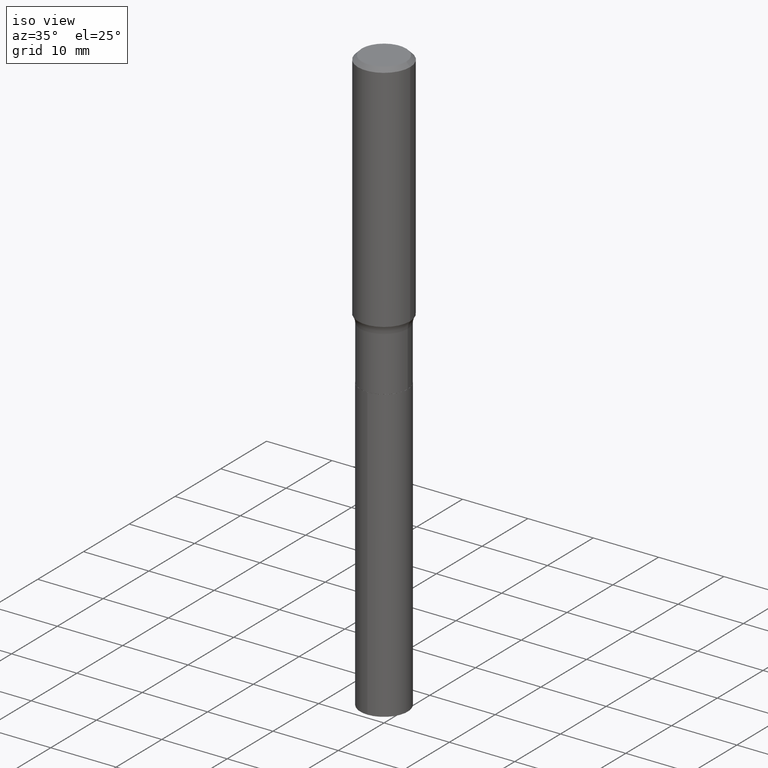
[diagram: clean part render]
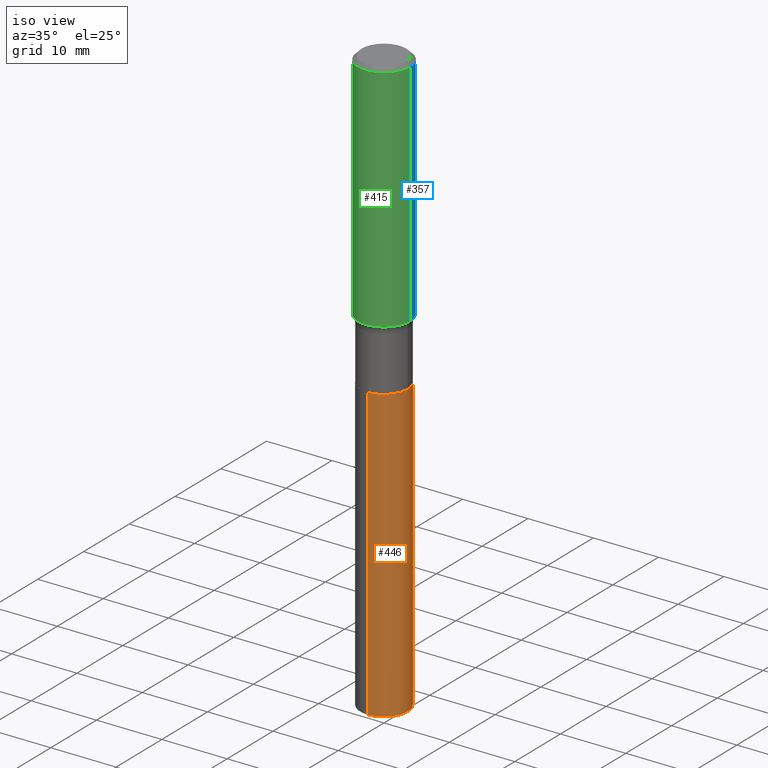
[diagram: same view with three faces highlighted in distinct colors, each labeled with its STEP entity id]
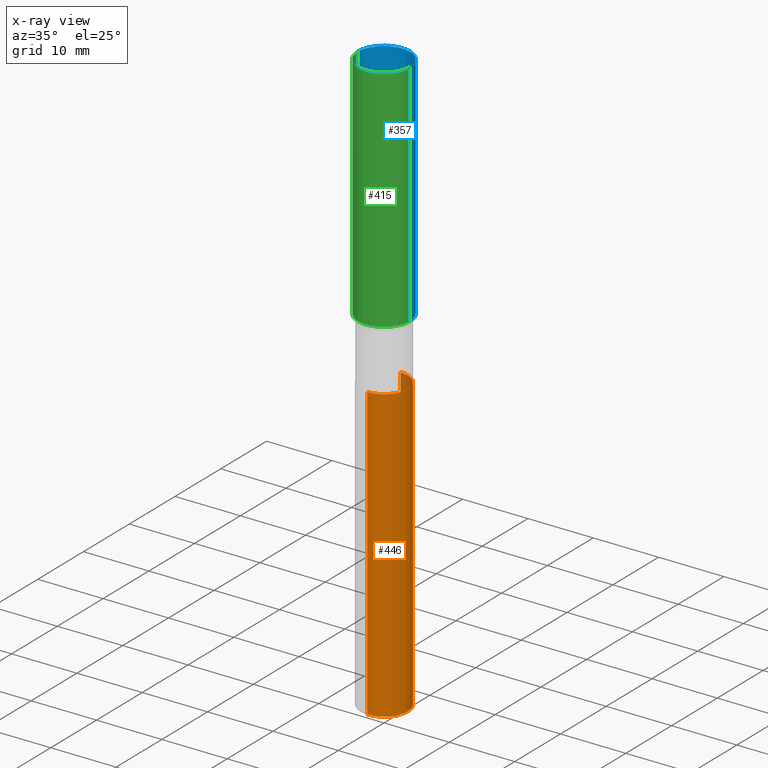
[diagram: x-ray of the same camera — body ghosted, the three highlighted faces saturated]
A machine part, iso view with three faces highlighted in distinct colors.
The next image is the same camera in x-ray (body ghosted, the three faces saturated) — at least one of them is partly hidden behind the body in this view.
Their STEP definitions:

[orange] entity #446 — the highlighted cylindrical surface (edge-blend (fillet) strip) has radius 3.6246 mm, axis along (-0, 0, 1).
#18 = CARTESIAN_POINT ( 'NONE',  ( -9.964687741057865457E-16, -0.1427000000000062108, -1.781499999999999861 ) ) ;
#20 = LINE ( 'NONE', #55, #121 ) ;
#25 = VERTEX_POINT ( 'NONE', #134 ) ;
#30 = AXIS2_PLACEMENT_3D ( 'NONE', #349, #418, #236 ) ;
#36 = CARTESIAN_POINT ( 'NONE',  ( 4.356602678218821524E-29, -6.220074005149064918E-15, -1.781500000000000306 ) ) ;
#55 = CARTESIAN_POINT ( 'NONE',  ( 1.013944483929706307E-15, 0.1426999999999937763, -1.781500000000000972 ) ) ;
#70 = EDGE_CURVE ( 'NONE', #454, #358, #389, .T. ) ;
#82 = EDGE_CURVE ( 'NONE', #25, #310, #87, .T. ) ;
#87 = CIRCLE ( 'NONE', #360, 0.1426999999999999935 ) ;
#90 = EDGE_LOOP ( 'NONE', ( #97, #320, #104, #290 ) ) ;
#97 = ORIENTED_EDGE ( 'NONE', *, *, #70, .T. ) ;
#102 = CARTESIAN_POINT ( 'NONE',  ( 1.013944483929749694E-15, 0.1426999999999937763, -1.781500000000000972 ) ) ;
#104 = ORIENTED_EDGE ( 'NONE', *, *, #82, .F. ) ;
#121 = VECTOR ( 'NONE', #211, 39.37007874015748143 ) ;
#134 = CARTESIAN_POINT ( 'NONE',  ( -9.964687741057865457E-16, -0.1427000000000062108, -1.781499999999999861 ) ) ;
#155 = DIRECTION ( 'NONE',  ( -6.982962677686265922E-15, -1.000000000000000000, 3.828798869886843840E-15 ) ) ;
#167 = CARTESIAN_POINT ( 'NONE',  ( 1.013944483929749694E-15, 0.1426999999999876700, -3.537706862826970333 ) ) ;
#211 = DIRECTION ( 'NONE',  ( -2.445500656237034327E-29, 3.491435727756035230E-15, 1.000000000000000000 ) ) ;
#214 = DIRECTION ( 'NONE',  ( -6.982962677686265922E-15, -1.000000000000000000, 3.828798869886843840E-15 ) ) ;
#216 = CARTESIAN_POINT ( 'NONE',  ( -9.964687741057439472E-16, -0.1427000000000123725, -3.537706862826969445 ) ) ;
#236 = DIRECTION ( 'NONE',  ( -6.982962677686265922E-15, -1.000000000000000000, 3.828798869886843840E-15 ) ) ;
#251 = EDGE_CURVE ( 'NONE', #454, #25, #388, .T. ) ;
#260 = FACE_OUTER_BOUND ( 'NONE', #90, .T. ) ;
#264 = AXIS2_PLACEMENT_3D ( 'NONE', #36, #408, #214 ) ;
#290 = ORIENTED_EDGE ( 'NONE', *, *, #251, .F. ) ;
#310 = VERTEX_POINT ( 'NONE', #102 ) ;
#311 = EDGE_CURVE ( 'NONE', #358, #310, #20, .T. ) ;
#320 = ORIENTED_EDGE ( 'NONE', *, *, #311, .T. ) ;
#323 = DIRECTION ( 'NONE',  ( -2.445500656237034327E-29, 3.491435727756035230E-15, 1.000000000000000000 ) ) ;
#349 = CARTESIAN_POINT ( 'NONE',  ( 8.651407713750158819E-29, -1.235175739135348952E-14, -3.537706862826969889 ) ) ;
#358 = VERTEX_POINT ( 'NONE', #167 ) ;
#360 = AXIS2_PLACEMENT_3D ( 'NONE', #375, #426, #155 ) ;
#375 = CARTESIAN_POINT ( 'NONE',  ( 4.356602678218821524E-29, -6.220074005149064918E-15, -1.781500000000000306 ) ) ;
#388 = LINE ( 'NONE', #18, #417 ) ;
#389 = CIRCLE ( 'NONE', #30, 0.1426999999999999935 ) ;
#408 = DIRECTION ( 'NONE',  ( -2.445500656237034607E-29, 3.491435727756035230E-15, 1.000000000000000000 ) ) ;
#410 = CYLINDRICAL_SURFACE ( 'NONE', #264, 0.1426999999999999935 ) ;
#417 = VECTOR ( 'NONE', #323, 39.37007874015748143 ) ;
#418 = DIRECTION ( 'NONE',  ( -2.445500656237034607E-29, 3.491435727756035230E-15, 1.000000000000000000 ) ) ;
#426 = DIRECTION ( 'NONE',  ( -2.445500656237034607E-29, 3.491435727756035230E-15, 1.000000000000000000 ) ) ;
#446 = ADVANCED_FACE ( 'NONE', ( #260 ), #410, .T. ) ;
#454 = VERTEX_POINT ( 'NONE', #216 ) ;

[blue] entity #357 — the highlighted cylindrical surface (edge-blend (fillet) strip) has radius 4.0005 mm, axis along (-0, 0, 1).
#15 = CARTESIAN_POINT ( 'NONE',  ( 0.000000000000000000, 0.000000000000000000, 0.000000000000000000 ) ) ;
#29 = EDGE_CURVE ( 'NONE', #262, #441, #265, .T. ) ;
#37 = AXIS2_PLACEMENT_3D ( 'NONE', #289, #207, #209 ) ;
#45 = CARTESIAN_POINT ( 'NONE',  ( -0.1575000000000001676, -3.795455817087887933E-15, -1.407586107144545018 ) ) ;
#50 = VERTEX_POINT ( 'NONE', #45 ) ;
#71 = CIRCLE ( 'NONE', #314, 0.1575000000000000011 ) ;
#112 = EDGE_CURVE ( 'NONE', #441, #385, #71, .T. ) ;
#124 = CARTESIAN_POINT ( 'NONE',  ( 0.1575000000000000844, -1.099816621735587677E-15, 7.679978421878603638E-30 ) ) ;
#149 = CARTESIAN_POINT ( 'NONE',  ( 0.1575000000000000011, -1.182302868365756679E-15, -0.02362500000000014588 ) ) ;
#161 = EDGE_CURVE ( 'NONE', #50, #385, #269, .T. ) ;
#172 = ORIENTED_EDGE ( 'NONE', *, *, #29, .F. ) ;
#197 = EDGE_LOOP ( 'NONE', ( #361, #371, #467, #172 ) ) ;
#207 = DIRECTION ( 'NONE',  ( -2.445468806185136597E-29, 3.491481338843145583E-15, 1.000000000000000000 ) ) ;
#209 = DIRECTION ( 'NONE',  ( 1.000000000000000000, -6.982962677686267499E-15, 0.000000000000000000 ) ) ;
#228 = DIRECTION ( 'NONE',  ( -2.445468806185136877E-29, 3.491481338843145188E-15, 1.000000000000000000 ) ) ;
#235 = FACE_OUTER_BOUND ( 'NONE', #197, .T. ) ;
#252 = VECTOR ( 'NONE', #228, 39.37007874015748143 ) ;
#262 = VERTEX_POINT ( 'NONE', #483 ) ;
#263 = VECTOR ( 'NONE', #416, 39.37007874015748143 ) ;
#265 = LINE ( 'NONE', #124, #252 ) ;
#269 = LINE ( 'NONE', #379, #263 ) ;
#289 = CARTESIAN_POINT ( 'NONE',  ( 3.442207917041554206E-29, -4.914560625910047114E-15, -1.407586107144545018 ) ) ;
#297 = AXIS2_PLACEMENT_3D ( 'NONE', #15, #392, #356 ) ;
#305 = DIRECTION ( 'NONE',  ( 1.000000000000000000, -6.982962677686265922E-15, 0.000000000000000000 ) ) ;
#314 = AXIS2_PLACEMENT_3D ( 'NONE', #377, #342, #305 ) ;
#342 = DIRECTION ( 'NONE',  ( -2.445468806185136597E-29, 3.491481338843145583E-15, 1.000000000000000000 ) ) ;
#346 = EDGE_CURVE ( 'NONE', #262, #50, #435, .T. ) ;
#356 = DIRECTION ( 'NONE',  ( 1.000000000000000000, -6.982962677686267499E-15, 4.876176775795936353E-29 ) ) ;
#357 = ADVANCED_FACE ( 'NONE', ( #235 ), #428, .T. ) ;
#361 = ORIENTED_EDGE ( 'NONE', *, *, #346, .T. ) ;
#371 = ORIENTED_EDGE ( 'NONE', *, *, #161, .T. ) ;
#377 = CARTESIAN_POINT ( 'NONE',  ( 5.777420054612421104E-31, -8.248624663016984002E-17, -0.02362500000000014588 ) ) ;
#379 = CARTESIAN_POINT ( 'NONE',  ( -0.1575000000000000844, 1.119104808822158392E-15, -7.747322767151481189E-30 ) ) ;
#385 = VERTEX_POINT ( 'NONE', #473 ) ;
#392 = DIRECTION ( 'NONE',  ( -2.445468806185136597E-29, 3.491481338843145583E-15, 1.000000000000000000 ) ) ;
#416 = DIRECTION ( 'NONE',  ( -2.445468806185136877E-29, 3.491481338843145188E-15, 1.000000000000000000 ) ) ;
#428 = CYLINDRICAL_SURFACE ( 'NONE', #297, 0.1575000000000000844 ) ;
#435 = CIRCLE ( 'NONE', #37, 0.1575000000000001676 ) ;
#441 = VERTEX_POINT ( 'NONE', #149 ) ;
#467 = ORIENTED_EDGE ( 'NONE', *, *, #112, .F. ) ;
#473 = CARTESIAN_POINT ( 'NONE',  ( -0.1575000000000000011, -1.379418627447949666E-15, -0.02362500000000014588 ) ) ;
#483 = CARTESIAN_POINT ( 'NONE',  ( 0.1575000000000001676, -6.014377247645635383E-15, -1.407586107144545018 ) ) ;

[green] entity #415 — the highlighted cylindrical surface (edge-blend (fillet) strip) has radius 4.0005 mm, axis along (-0, 0, 1).
#22 = AXIS2_PLACEMENT_3D ( 'NONE', #258, #488, #400 ) ;
#29 = EDGE_CURVE ( 'NONE', #262, #441, #265, .T. ) ;
#45 = CARTESIAN_POINT ( 'NONE',  ( -0.1575000000000001676, -3.795455817087887933E-15, -1.407586107144545018 ) ) ;
#50 = VERTEX_POINT ( 'NONE', #45 ) ;
#66 = FACE_OUTER_BOUND ( 'NONE', #288, .T. ) ;
#69 = DIRECTION ( 'NONE',  ( -2.445468806185136597E-29, 3.491481338843145583E-15, 1.000000000000000000 ) ) ;
#86 = ORIENTED_EDGE ( 'NONE', *, *, #414, .F. ) ;
#110 = CYLINDRICAL_SURFACE ( 'NONE', #425, 0.1575000000000000844 ) ;
#124 = CARTESIAN_POINT ( 'NONE',  ( 0.1575000000000000844, -1.099816621735587677E-15, 7.679978421878603638E-30 ) ) ;
#149 = CARTESIAN_POINT ( 'NONE',  ( 0.1575000000000000011, -1.182302868365756679E-15, -0.02362500000000014588 ) ) ;
#161 = EDGE_CURVE ( 'NONE', #50, #385, #269, .T. ) ;
#177 = AXIS2_PLACEMENT_3D ( 'NONE', #255, #254, #221 ) ;
#193 = ORIENTED_EDGE ( 'NONE', *, *, #29, .T. ) ;
#221 = DIRECTION ( 'NONE',  ( 1.000000000000000000, -6.982962677686267499E-15, 0.000000000000000000 ) ) ;
#228 = DIRECTION ( 'NONE',  ( -2.445468806185136877E-29, 3.491481338843145188E-15, 1.000000000000000000 ) ) ;
#233 = ORIENTED_EDGE ( 'NONE', *, *, #406, .T. ) ;
#252 = VECTOR ( 'NONE', #228, 39.37007874015748143 ) ;
#254 = DIRECTION ( 'NONE',  ( -2.445468806185136597E-29, 3.491481338843145583E-15, 1.000000000000000000 ) ) ;
#255 = CARTESIAN_POINT ( 'NONE',  ( 3.442207917041554206E-29, -4.914560625910047114E-15, -1.407586107144545018 ) ) ;
#258 = CARTESIAN_POINT ( 'NONE',  ( 5.777420054612421104E-31, -8.248624663016984002E-17, -0.02362500000000014588 ) ) ;
#262 = VERTEX_POINT ( 'NONE', #483 ) ;
#263 = VECTOR ( 'NONE', #416, 39.37007874015748143 ) ;
#265 = LINE ( 'NONE', #124, #252 ) ;
#269 = LINE ( 'NONE', #379, #263 ) ;
#288 = EDGE_LOOP ( 'NONE', ( #398, #233, #193, #86 ) ) ;
#331 = DIRECTION ( 'NONE',  ( 1.000000000000000000, -6.982962677686267499E-15, 4.876176775795936353E-29 ) ) ;
#379 = CARTESIAN_POINT ( 'NONE',  ( -0.1575000000000000844, 1.119104808822158392E-15, -7.747322767151481189E-30 ) ) ;
#381 = CIRCLE ( 'NONE', #177, 0.1575000000000001676 ) ;
#385 = VERTEX_POINT ( 'NONE', #473 ) ;
#398 = ORIENTED_EDGE ( 'NONE', *, *, #161, .F. ) ;
#400 = DIRECTION ( 'NONE',  ( 1.000000000000000000, -6.982962677686265922E-15, 0.000000000000000000 ) ) ;
#406 = EDGE_CURVE ( 'NONE', #50, #262, #381, .T. ) ;
#414 = EDGE_CURVE ( 'NONE', #385, #441, #449, .T. ) ;
#415 = ADVANCED_FACE ( 'NONE', ( #66 ), #110, .T. ) ;
#416 = DIRECTION ( 'NONE',  ( -2.445468806185136877E-29, 3.491481338843145188E-15, 1.000000000000000000 ) ) ;
#425 = AXIS2_PLACEMENT_3D ( 'NONE', #448, #69, #331 ) ;
#441 = VERTEX_POINT ( 'NONE', #149 ) ;
#448 = CARTESIAN_POINT ( 'NONE',  ( 0.000000000000000000, 0.000000000000000000, 0.000000000000000000 ) ) ;
#449 = CIRCLE ( 'NONE', #22, 0.1575000000000000011 ) ;
#473 = CARTESIAN_POINT ( 'NONE',  ( -0.1575000000000000011, -1.379418627447949666E-15, -0.02362500000000014588 ) ) ;
#483 = CARTESIAN_POINT ( 'NONE',  ( 0.1575000000000001676, -6.014377247645635383E-15, -1.407586107144545018 ) ) ;
#488 = DIRECTION ( 'NONE',  ( -2.445468806185136597E-29, 3.491481338843145583E-15, 1.000000000000000000 ) ) ;